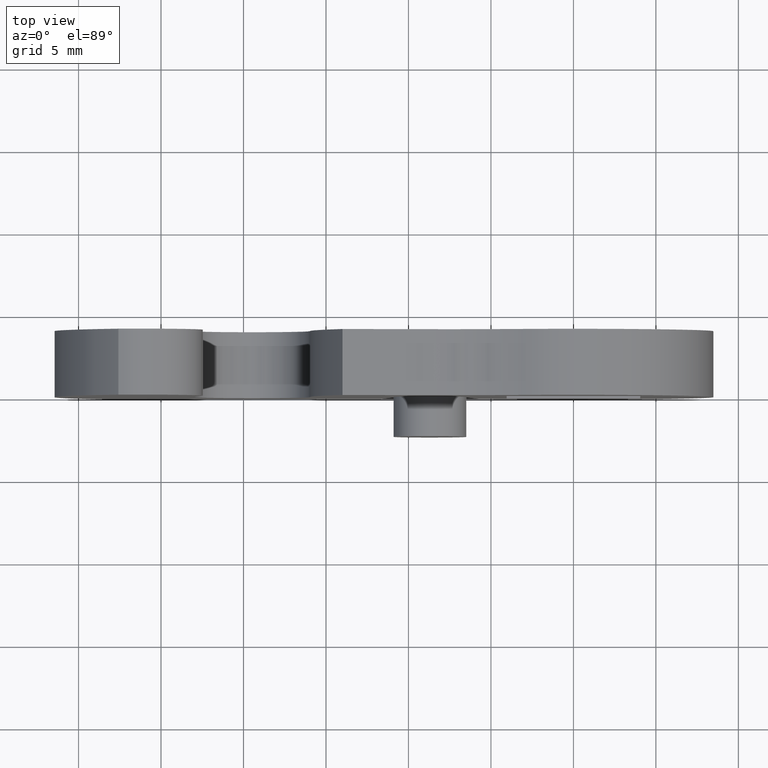
[diagram: clean part render]
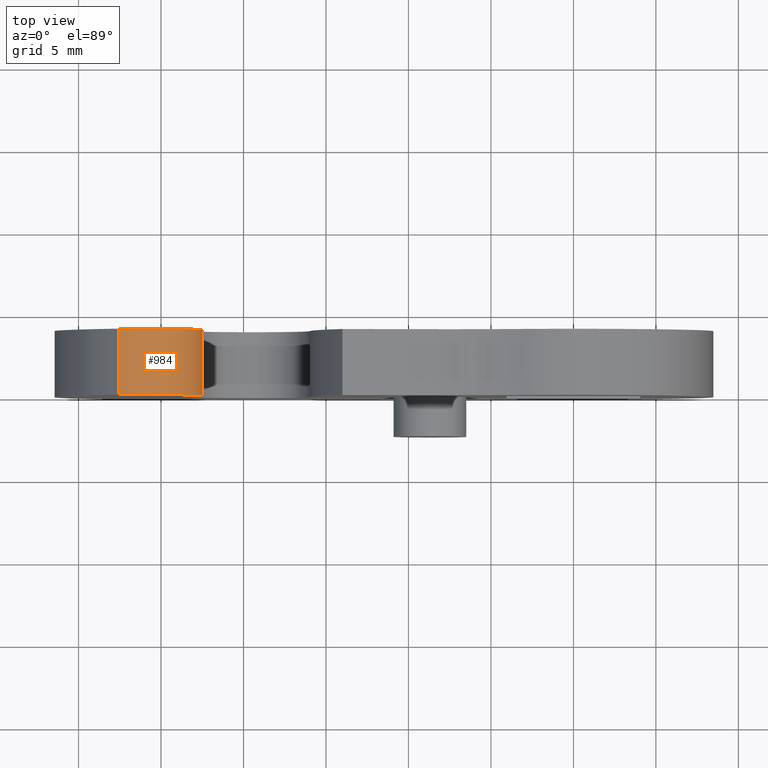
[diagram: same view with one face highlighted and labeled with its STEP entity id]
A machine part, top view. The second image highlights one B-rep face of the part: STEP entity #984.
In plain terms, the highlighted face is a freeform B-spline surface patch.
Its self-contained STEP definition (entity closure, byte-faithful):
#666=CARTESIAN_POINT('',(-27.588748733254949,4.000000189989585,8.864094572663710));
#667=VERTEX_POINT('',#666);
#683=CARTESIAN_POINT('',(-22.545756322395651,4.000000189989585,4.548507678729610));
#684=VERTEX_POINT('',#683);
#685=CARTESIAN_POINT('',(-22.545756322395651,4.000000189989585,4.548507678729610));
#686=CARTESIAN_POINT('',(-22.104412871510750,4.000000189989585,6.736131093015298));
#687=CARTESIAN_POINT('',(-23.800003801249868,4.000000189989585,8.187148544101389));
#688=CARTESIAN_POINT('',(-25.495594730988987,4.000000189989585,9.638165995187480));
#689=CARTESIAN_POINT('',(-27.588748733254949,4.000000189989585,8.864094572663721));
#697=(BOUNDED_CURVE()B_SPLINE_CURVE(2,(#685,#686,#687,#688,#689),.UNSPECIFIED.,.F.,.U.)B_SPLINE_CURVE_WITH_KNOTS((3,2,3),(0.0,0.500000000000000,1.0),.UNSPECIFIED.)CURVE()GEOMETRIC_REPRESENTATION_ITEM()RATIONAL_B_SPLINE_CURVE((1.0,0.862290535424148,1.0,0.862290535424148,1.0))REPRESENTATION_ITEM(''));
#698=EDGE_CURVE('',#684,#667,#697,.T.);
#917=CARTESIAN_POINT('',(-27.588748733254949,0.0,8.864094572663710));
#918=VERTEX_POINT('',#917);
#934=CARTESIAN_POINT('',(-27.588748733254949,4.000000189989585,8.864094572663710));
#935=CARTESIAN_POINT('',(-27.588748733254949,0.0,8.864094572663710));
#936=QUASI_UNIFORM_CURVE('',1,(#934,#935),.UNSPECIFIED.,.F.,.U.);
#937=EDGE_CURVE('',#667,#918,#936,.T.);
#944=CARTESIAN_POINT('',(-27.699986614916579,4.100000194739325,8.820960660927627));
#945=CARTESIAN_POINT('',(-27.699986614916579,-0.102500004868483,8.820960660927627));
#946=CARTESIAN_POINT('',(-20.480947961903325,4.100000194739324,11.751417393699294));
#947=CARTESIAN_POINT('',(-20.480947961903325,-0.102500004868483,11.751417393699294));
#948=CARTESIAN_POINT('',(-22.616200531047120,4.100000194739325,4.258567988946052));
#949=CARTESIAN_POINT('',(-22.616200531047120,-0.102500004868483,4.258567988946052));
#957=(BOUNDED_SURFACE()B_SPLINE_SURFACE(1,2,((#944,#946,#948),(#945,#947,#949)),.UNSPECIFIED.,.F.,.F.,.U.)B_SPLINE_SURFACE_WITH_KNOTS((2,2),(3,3),(0.0,4.202500199607808),(0.0,9.498014600153230),.UNSPECIFIED.)GEOMETRIC_REPRESENTATION_ITEM()RATIONAL_B_SPLINE_SURFACE(((1.0,0.438371146789078,1.0),(1.0,0.438371146789078,1.0)))REPRESENTATION_ITEM('')SURFACE());
#958=CARTESIAN_POINT('',(-22.545756322395651,0.0,4.548507678729610));
#959=VERTEX_POINT('',#958);
#960=CARTESIAN_POINT('',(-22.545756322395651,0.0,4.548507678729610));
#961=CARTESIAN_POINT('',(-22.104412871510750,0.0,6.736131093015298));
#962=CARTESIAN_POINT('',(-23.800003801249868,0.0,8.187148544101389));
#963=CARTESIAN_POINT('',(-25.495594730988987,0.0,9.638165995187480));
#964=CARTESIAN_POINT('',(-27.588748733254949,0.0,8.864094572663721));
#972=(BOUNDED_CURVE()B_SPLINE_CURVE(2,(#960,#961,#962,#963,#964),.UNSPECIFIED.,.F.,.U.)B_SPLINE_CURVE_WITH_KNOTS((3,2,3),(0.0,0.500000000000000,1.0),.UNSPECIFIED.)CURVE()GEOMETRIC_REPRESENTATION_ITEM()RATIONAL_B_SPLINE_CURVE((1.0,0.862290535424148,1.0,0.862290535424148,1.0))REPRESENTATION_ITEM(''));
#973=EDGE_CURVE('',#959,#918,#972,.T.);
#974=ORIENTED_EDGE('',*,*,#973,.F.);
#975=CARTESIAN_POINT('',(-22.545756322395651,4.000000189989585,4.548507678729610));
#976=CARTESIAN_POINT('',(-22.545756322395651,0.0,4.548507678729610));
#977=QUASI_UNIFORM_CURVE('',1,(#975,#976),.UNSPECIFIED.,.F.,.U.);
#978=EDGE_CURVE('',#684,#959,#977,.T.);
#979=ORIENTED_EDGE('',*,*,#978,.F.);
#980=ORIENTED_EDGE('',*,*,#698,.T.);
#981=ORIENTED_EDGE('',*,*,#937,.T.);
#982=EDGE_LOOP('',(#974,#979,#980,#981));
#983=FACE_OUTER_BOUND('',#982,.T.);
#984=ADVANCED_FACE('',(#983),#957,.T.);